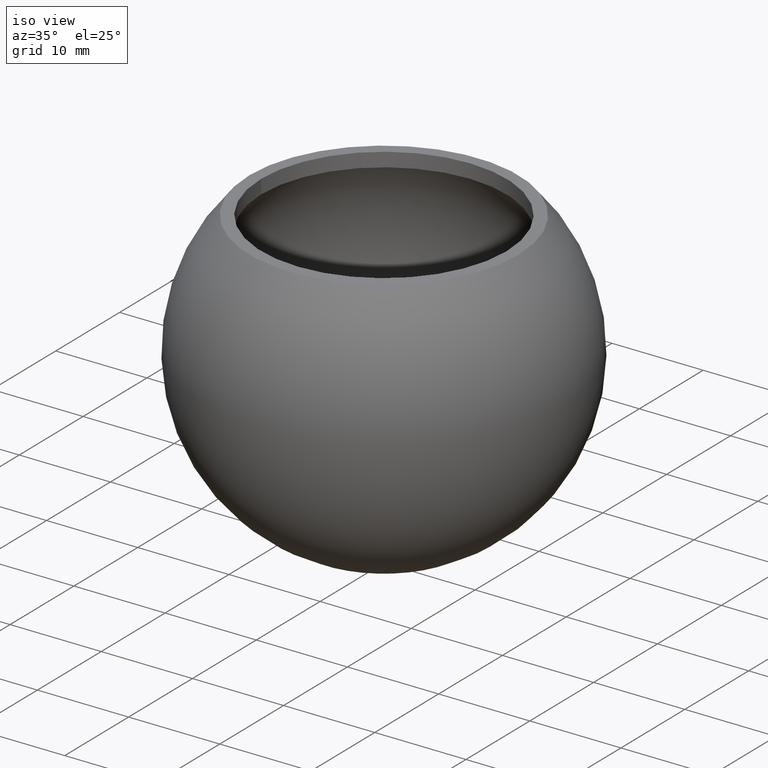
[diagram: clean part render]
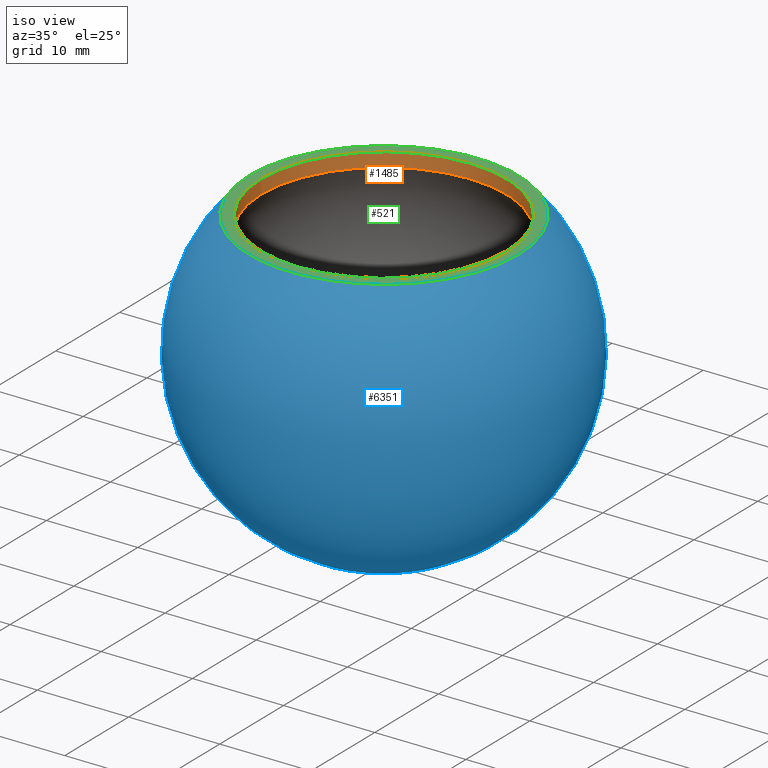
[diagram: same view with three faces highlighted in distinct colors, each labeled with its STEP entity id]
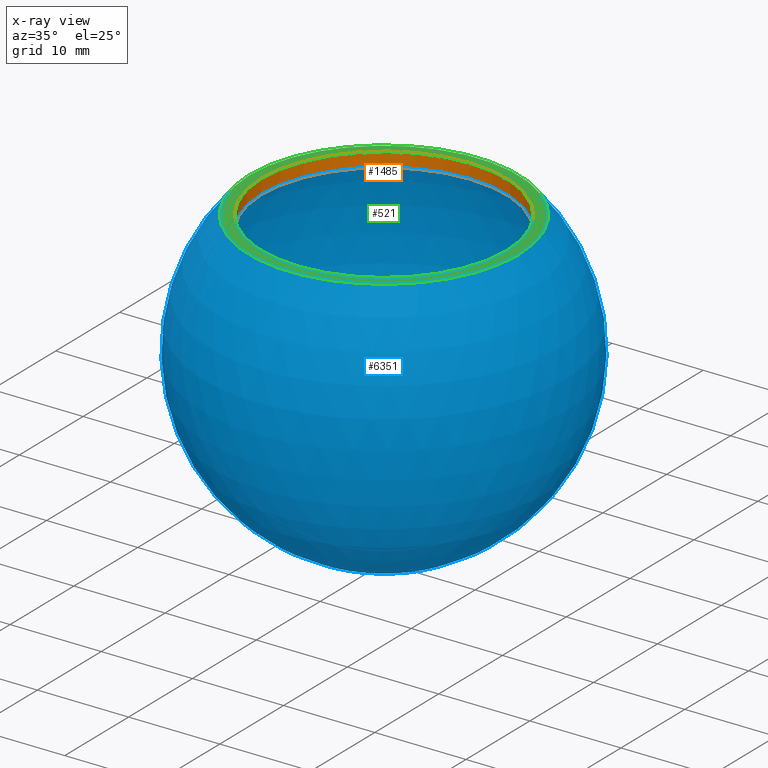
[diagram: x-ray of the same camera — body ghosted, the three highlighted faces saturated]
A machine part, iso view with three faces highlighted in distinct colors.
The next image is the same camera in x-ray (body ghosted, the three faces saturated) — at least one of them is partly hidden behind the body in this view.
Their STEP definitions:

[orange] entity #1485 — the highlighted cylindrical surface (bore or boss wall) has radius 13.45 mm, axis along (0, 0, -1).
#434 = FACE_OUTER_BOUND ( 'NONE', #5957, .T. ) ;
#1090 = CYLINDRICAL_SURFACE ( 'NONE', #3720, 13.44999999999999929 ) ;
#1200 = EDGE_CURVE ( 'NONE', #4063, #4063, #5898, .T. ) ;
#1485 = ADVANCED_FACE ( 'NONE', ( #434, #5584 ), #1090, .F. ) ;
#1724 = EDGE_LOOP ( 'NONE', ( #10944 ) ) ;
#2190 = AXIS2_PLACEMENT_3D ( 'NONE', #2650, #3616, #11724 ) ;
#2392 = CARTESIAN_POINT ( 'NONE',  ( 0.000000000000000000, 0.000000000000000000, 11.96233672824837768 ) ) ;
#2522 = DIRECTION ( 'NONE',  ( -1.000000000000000000, 0.000000000000000000, 0.000000000000000000 ) ) ;
#2650 = CARTESIAN_POINT ( 'NONE',  ( 0.000000000000000000, 0.000000000000000000, 13.50000000000000178 ) ) ;
#2836 = CARTESIAN_POINT ( 'NONE',  ( -13.44999999999999929, 0.000000000000000000, 13.50000000000000178 ) ) ;
#2878 = CARTESIAN_POINT ( 'NONE',  ( -13.44999999999999929, 0.000000000000000000, 11.96233672824837768 ) ) ;
#3616 = DIRECTION ( 'NONE',  ( 0.000000000000000000, 0.000000000000000000, -1.000000000000000000 ) ) ;
#3720 = AXIS2_PLACEMENT_3D ( 'NONE', #11921, #5665, #6731 ) ;
#4063 = VERTEX_POINT ( 'NONE', #2836 ) ;
#5584 = FACE_OUTER_BOUND ( 'NONE', #1724, .T. ) ;
#5665 = DIRECTION ( 'NONE',  ( 0.000000000000000000, 0.000000000000000000, -1.000000000000000000 ) ) ;
#5898 = CIRCLE ( 'NONE', #2190, 13.44999999999999929 ) ;
#5957 = EDGE_LOOP ( 'NONE', ( #9416 ) ) ;
#6573 = CIRCLE ( 'NONE', #13273, 13.44999999999999929 ) ;
#6731 = DIRECTION ( 'NONE',  ( -1.000000000000000000, 0.000000000000000000, 0.000000000000000000 ) ) ;
#7600 = DIRECTION ( 'NONE',  ( -0.000000000000000000, -0.000000000000000000, -1.000000000000000000 ) ) ;
#9416 = ORIENTED_EDGE ( 'NONE', *, *, #1200, .F. ) ;
#9954 = VERTEX_POINT ( 'NONE', #2878 ) ;
#10944 = ORIENTED_EDGE ( 'NONE', *, *, #11298, .T. ) ;
#11298 = EDGE_CURVE ( 'NONE', #9954, #9954, #6573, .T. ) ;
#11724 = DIRECTION ( 'NONE',  ( -1.000000000000000000, 0.000000000000000000, 0.000000000000000000 ) ) ;
#11921 = CARTESIAN_POINT ( 'NONE',  ( 0.000000000000000000, 0.000000000000000000, 20.00000000000000000 ) ) ;
#13273 = AXIS2_PLACEMENT_3D ( 'NONE', #2392, #7600, #2522 ) ;

[blue] entity #6351 — the highlighted spherical surface has radius 20 mm.
#194 = DIRECTION ( 'NONE',  ( -1.000000000000000000, 0.000000000000000000, 0.000000000000000000 ) ) ;
#970 = DIRECTION ( 'NONE',  ( -1.000000000000000000, -9.184850993605163722E-16, 0.000000000000000000 ) ) ;
#1252 = DIRECTION ( 'NONE',  ( 0.000000000000000000, 0.000000000000000000, -1.000000000000000000 ) ) ;
#2318 = EDGE_CURVE ( 'NONE', #12688, #12688, #7010, .T. ) ;
#3474 = AXIS2_PLACEMENT_3D ( 'NONE', #10067, #4092, #970 ) ;
#4092 = DIRECTION ( 'NONE',  ( 0.000000000000000000, 0.000000000000000000, 1.000000000000000000 ) ) ;
#4554 = FACE_BOUND ( 'NONE', #11135, .T. ) ;
#5992 = SPHERICAL_SURFACE ( 'NONE', #3474, 20.00000000000000000 ) ;
#6253 = CARTESIAN_POINT ( 'NONE',  ( 0.000000000000000000, 0.000000000000000000, 13.50000000000000178 ) ) ;
#6351 = ADVANCED_FACE ( 'NONE', ( #4554 ), #5992, .T. ) ;
#7010 = CIRCLE ( 'NONE', #11440, 14.75635456337370499 ) ;
#8945 = CARTESIAN_POINT ( 'NONE',  ( -14.75635456337370499, 0.000000000000000000, 13.50000000000000178 ) ) ;
#10067 = CARTESIAN_POINT ( 'NONE',  ( 0.000000000000000000, 0.000000000000000000, 0.000000000000000000 ) ) ;
#11135 = EDGE_LOOP ( 'NONE', ( #12855 ) ) ;
#11440 = AXIS2_PLACEMENT_3D ( 'NONE', #6253, #1252, #194 ) ;
#12688 = VERTEX_POINT ( 'NONE', #8945 ) ;
#12855 = ORIENTED_EDGE ( 'NONE', *, *, #2318, .T. ) ;

[green] entity #521 — the highlighted planar face has unit normal (0, 0, -1).
#194 = DIRECTION ( 'NONE',  ( -1.000000000000000000, 0.000000000000000000, 0.000000000000000000 ) ) ;
#521 = ADVANCED_FACE ( 'NONE', ( #9225, #6039 ), #9918, .F. ) ;
#1200 = EDGE_CURVE ( 'NONE', #4063, #4063, #5898, .T. ) ;
#1252 = DIRECTION ( 'NONE',  ( 0.000000000000000000, 0.000000000000000000, -1.000000000000000000 ) ) ;
#2190 = AXIS2_PLACEMENT_3D ( 'NONE', #2650, #3616, #11724 ) ;
#2318 = EDGE_CURVE ( 'NONE', #12688, #12688, #7010, .T. ) ;
#2610 = AXIS2_PLACEMENT_3D ( 'NONE', #11950, #4694, #7867 ) ;
#2650 = CARTESIAN_POINT ( 'NONE',  ( 0.000000000000000000, 0.000000000000000000, 13.50000000000000178 ) ) ;
#2836 = CARTESIAN_POINT ( 'NONE',  ( -13.44999999999999929, 0.000000000000000000, 13.50000000000000178 ) ) ;
#3616 = DIRECTION ( 'NONE',  ( 0.000000000000000000, 0.000000000000000000, -1.000000000000000000 ) ) ;
#4063 = VERTEX_POINT ( 'NONE', #2836 ) ;
#4694 = DIRECTION ( 'NONE',  ( 0.000000000000000000, 0.000000000000000000, -1.000000000000000000 ) ) ;
#5325 = EDGE_LOOP ( 'NONE', ( #6219 ) ) ;
#5898 = CIRCLE ( 'NONE', #2190, 13.44999999999999929 ) ;
#6039 = FACE_OUTER_BOUND ( 'NONE', #6597, .T. ) ;
#6219 = ORIENTED_EDGE ( 'NONE', *, *, #1200, .T. ) ;
#6253 = CARTESIAN_POINT ( 'NONE',  ( 0.000000000000000000, 0.000000000000000000, 13.50000000000000178 ) ) ;
#6597 = EDGE_LOOP ( 'NONE', ( #9988 ) ) ;
#7010 = CIRCLE ( 'NONE', #11440, 14.75635456337370499 ) ;
#7867 = DIRECTION ( 'NONE',  ( -1.000000000000000000, 0.000000000000000000, -0.000000000000000000 ) ) ;
#8945 = CARTESIAN_POINT ( 'NONE',  ( -14.75635456337370499, 0.000000000000000000, 13.50000000000000178 ) ) ;
#9225 = FACE_BOUND ( 'NONE', #5325, .T. ) ;
#9918 = PLANE ( 'NONE',  #2610 ) ;
#9988 = ORIENTED_EDGE ( 'NONE', *, *, #2318, .F. ) ;
#11440 = AXIS2_PLACEMENT_3D ( 'NONE', #6253, #1252, #194 ) ;
#11724 = DIRECTION ( 'NONE',  ( -1.000000000000000000, 0.000000000000000000, 0.000000000000000000 ) ) ;
#11950 = CARTESIAN_POINT ( 'NONE',  ( 0.000000000000000000, 0.000000000000000000, 13.50000000000000178 ) ) ;
#12688 = VERTEX_POINT ( 'NONE', #8945 ) ;